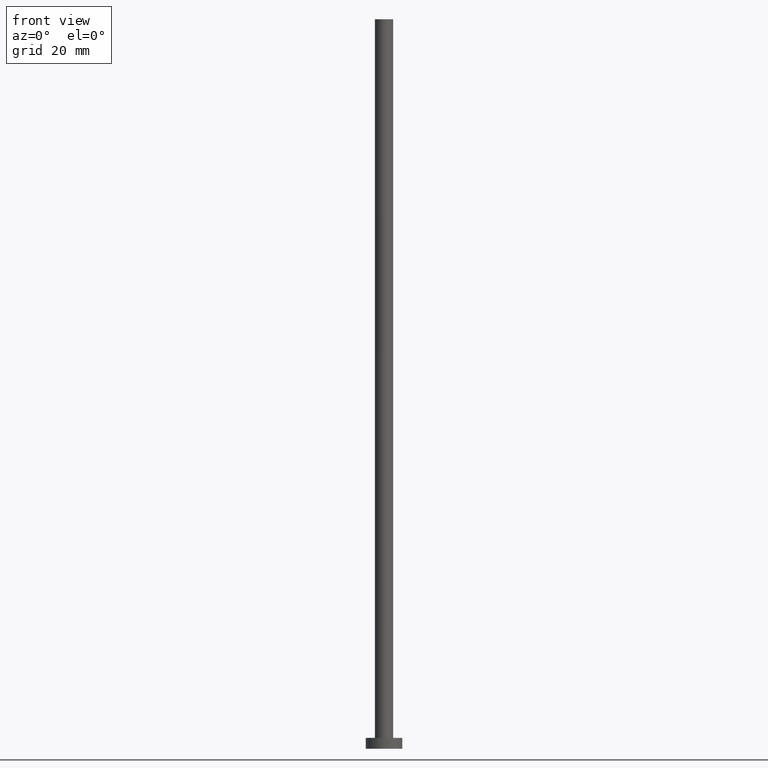
[diagram: clean part render]
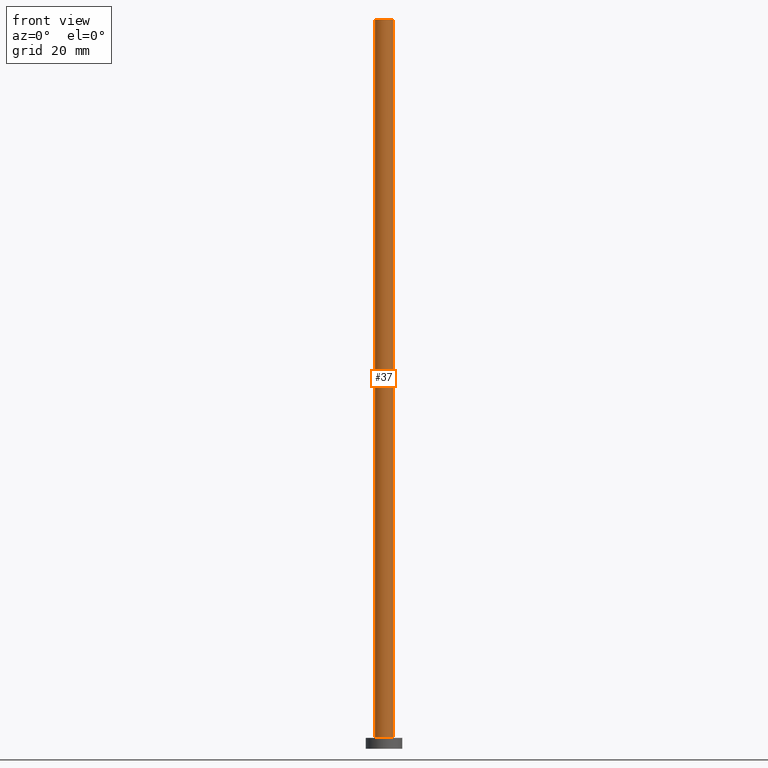
[diagram: same view with one face highlighted and labeled with its STEP entity id]
A machine part, front view. The second image highlights one B-rep face of the part: STEP entity #37.
In plain terms, the highlighted cylindrical surface (edge-blend (fillet) strip) has radius 2.5 mm, axis along (-0, -0, -1).
Its self-contained STEP definition (entity closure, byte-faithful):
#2 = CARTESIAN_POINT ( 'NONE',  ( 0.000000000000000000, 0.000000000000000000, 200.0000000000000000 ) ) ;
#18 = VERTEX_POINT ( 'NONE', #153 ) ;
#20 = VERTEX_POINT ( 'NONE', #185 ) ;
#24 = CARTESIAN_POINT ( 'NONE',  ( 2.500000000000000000, 3.061616997868383141E-16, 200.0000000000000000 ) ) ;
#27 = DIRECTION ( 'NONE',  ( 1.000000000000000000, 0.000000000000000000, 0.000000000000000000 ) ) ;
#35 = CARTESIAN_POINT ( 'NONE',  ( 0.000000000000000000, 0.000000000000000000, 3.000000000000000000 ) ) ;
#37 = ADVANCED_FACE ( 'NONE', ( #67 ), #223, .T. ) ;
#45 = AXIS2_PLACEMENT_3D ( 'NONE', #2, #201, #27 ) ;
#59 = VECTOR ( 'NONE', #220, 1000.000000000000000 ) ;
#64 = CIRCLE ( 'NONE', #213, 2.500000000000000000 ) ;
#67 = FACE_OUTER_BOUND ( 'NONE', #212, .T. ) ;
#70 = CARTESIAN_POINT ( 'NONE',  ( 0.000000000000000000, 0.000000000000000000, 200.0000000000000000 ) ) ;
#82 = VECTOR ( 'NONE', #184, 1000.000000000000000 ) ;
#84 = EDGE_CURVE ( 'NONE', #127, #141, #176, .T. ) ;
#102 = ORIENTED_EDGE ( 'NONE', *, *, #158, .T. ) ;
#103 = CIRCLE ( 'NONE', #45, 2.500000000000000000 ) ;
#108 = CARTESIAN_POINT ( 'NONE',  ( -2.500000000000000000, 0.000000000000000000, 200.0000000000000000 ) ) ;
#125 = LINE ( 'NONE', #108, #82 ) ;
#127 = VERTEX_POINT ( 'NONE', #178 ) ;
#138 = EDGE_CURVE ( 'NONE', #20, #127, #103, .T. ) ;
#141 = VERTEX_POINT ( 'NONE', #149 ) ;
#144 = DIRECTION ( 'NONE',  ( -0.000000000000000000, -0.000000000000000000, -1.000000000000000000 ) ) ;
#149 = CARTESIAN_POINT ( 'NONE',  ( 2.500000000000000000, 3.061616997868383141E-16, 3.000000000000000000 ) ) ;
#153 = CARTESIAN_POINT ( 'NONE',  ( -2.500000000000000000, 0.000000000000000000, 3.000000000000000000 ) ) ;
#157 = DIRECTION ( 'NONE',  ( 0.000000000000000000, 0.000000000000000000, 1.000000000000000000 ) ) ;
#158 = EDGE_CURVE ( 'NONE', #20, #18, #125, .T. ) ;
#165 = AXIS2_PLACEMENT_3D ( 'NONE', #70, #144, #243 ) ;
#171 = DIRECTION ( 'NONE',  ( 1.000000000000000000, 0.000000000000000000, 0.000000000000000000 ) ) ;
#176 = LINE ( 'NONE', #24, #59 ) ;
#178 = CARTESIAN_POINT ( 'NONE',  ( 2.500000000000000000, 3.061616997868383141E-16, 200.0000000000000000 ) ) ;
#181 = ORIENTED_EDGE ( 'NONE', *, *, #84, .F. ) ;
#184 = DIRECTION ( 'NONE',  ( -0.000000000000000000, -0.000000000000000000, -1.000000000000000000 ) ) ;
#185 = CARTESIAN_POINT ( 'NONE',  ( -2.500000000000000000, 0.000000000000000000, 200.0000000000000000 ) ) ;
#201 = DIRECTION ( 'NONE',  ( 0.000000000000000000, 0.000000000000000000, 1.000000000000000000 ) ) ;
#207 = EDGE_CURVE ( 'NONE', #18, #141, #64, .T. ) ;
#212 = EDGE_LOOP ( 'NONE', ( #181, #234, #102, #221 ) ) ;
#213 = AXIS2_PLACEMENT_3D ( 'NONE', #35, #157, #171 ) ;
#220 = DIRECTION ( 'NONE',  ( -0.000000000000000000, -0.000000000000000000, -1.000000000000000000 ) ) ;
#221 = ORIENTED_EDGE ( 'NONE', *, *, #207, .T. ) ;
#223 = CYLINDRICAL_SURFACE ( 'NONE', #165, 2.500000000000000000 ) ;
#234 = ORIENTED_EDGE ( 'NONE', *, *, #138, .F. ) ;
#243 = DIRECTION ( 'NONE',  ( -1.000000000000000000, 0.000000000000000000, 0.000000000000000000 ) ) ;